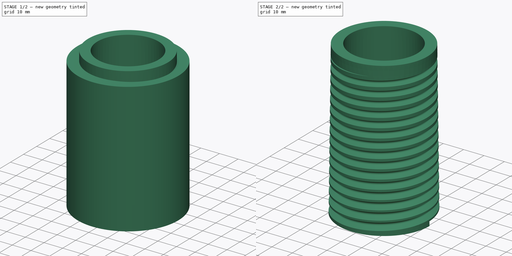
[diagram: build sequence overview — one tinted view per stage of 2, left to right]
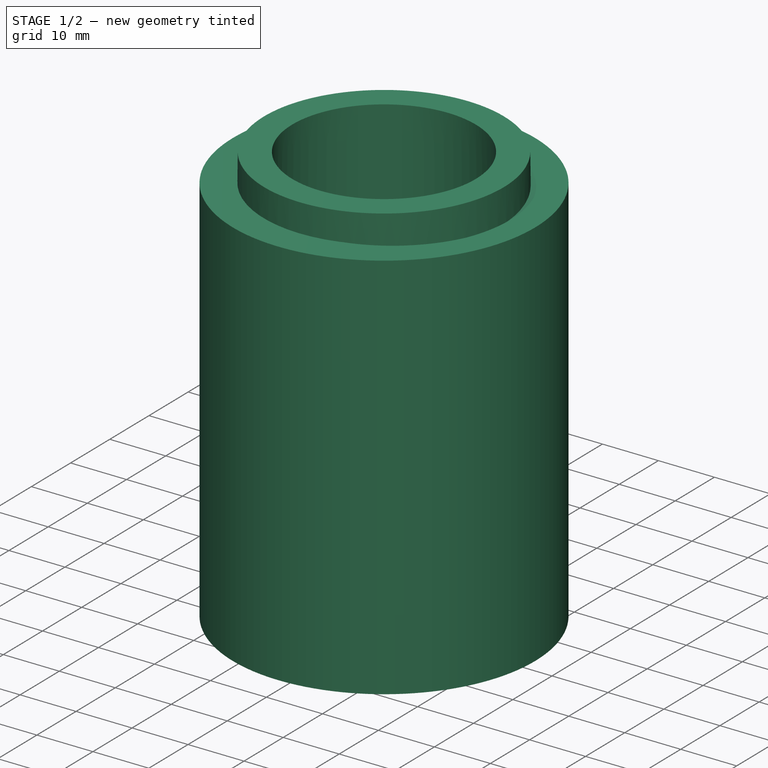
[diagram: stage 1 of 2 — iso view after this stage's code; geometry added in this stage tinted green]
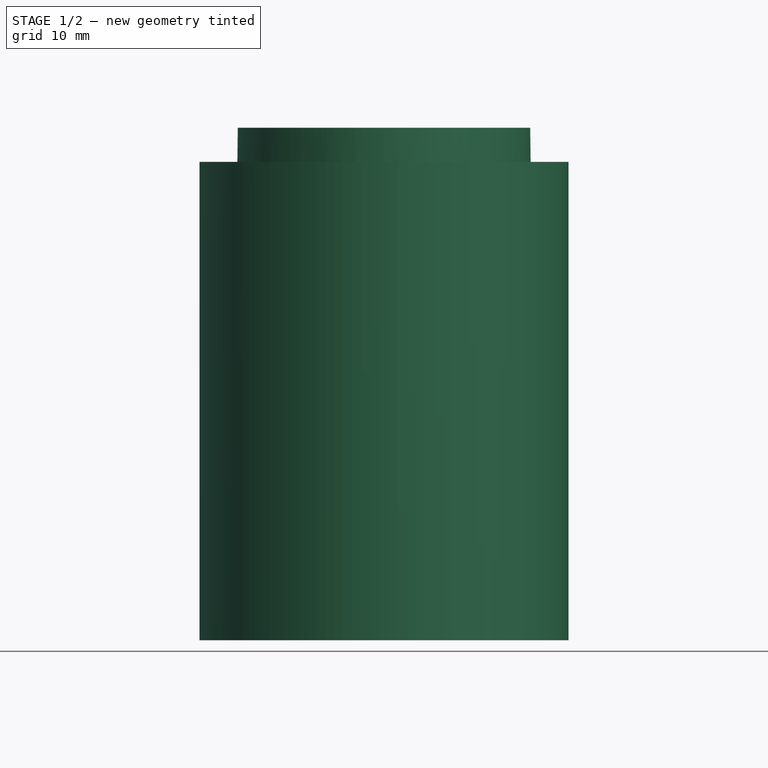
[diagram: stage 1 of 2 — front view after this stage's code; geometry added in this stage tinted green]
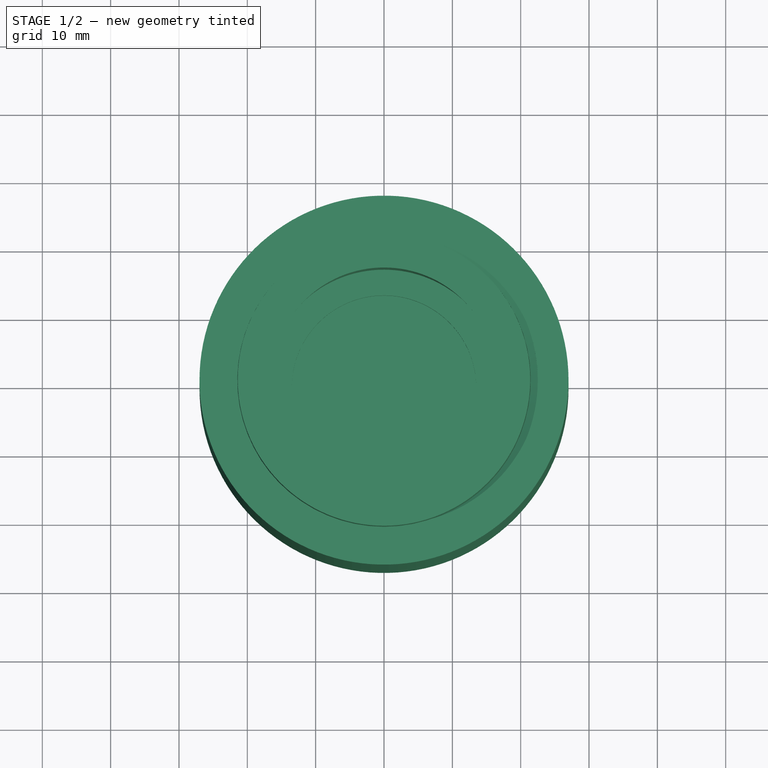
[diagram: stage 1 of 2 — top view after this stage's code; geometry added in this stage tinted green]
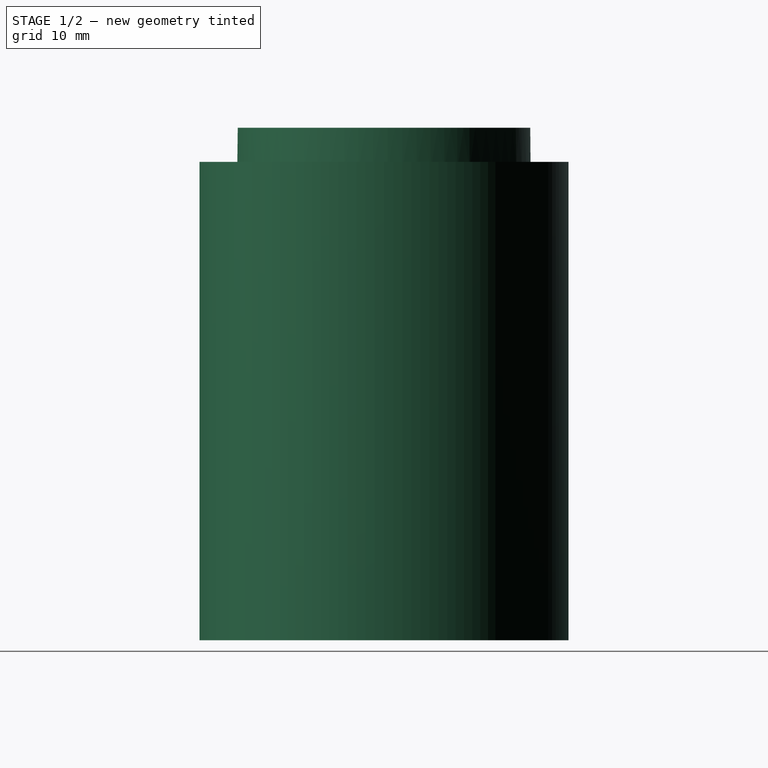
[diagram: stage 1 of 2 — right view after this stage's code; geometry added in this stage tinted green]
FCSTD DOCUMENT  (FreeCAD 0.21R33771 (Git))
Label: Крышка
License: All rights reserved
LicenseURL: https://en.wikipedia.org/wiki/All_rights_reserved
objects: Sketcher::SketchObject×1, PartDesign::Revolution×1, PartDesign::Body×1, Part::FeaturePython×1, Part::Cut×1
note: 6 computed .brp shape members not serialized (recipe doc carries the construction recipe); baked Part::Feature solids carry a one-line shape summary decoded from their .brp

FEATURE [Sketcher::SketchObject] Sketch
  FullyConstrained = true
  MapMode = 5
  Placement = pos=(0,0,0) rot=(0.57735,0.57735,0.57735;2.0944rad)
  Support = -> [YZ_Plane]
  sketch-geometry (14):
    g0: LineSegment StartX=-21.4 StartY=75 StartZ=0 EndX=-22.3 EndY=0 EndZ=0
    g1: LineSegment StartX=-22.3 StartY=0 StartZ=0 EndX=0 EndY=0 EndZ=0
    g2: LineSegment StartX=0 StartY=0 StartZ=0 EndX=0 EndY=5 EndZ=0
    g3: LineSegment StartX=0 StartY=5 StartZ=0 EndX=-13.5 EndY=5 EndZ=0
    g4: LineSegment StartX=-13.5 StartY=5 StartZ=0 EndX=-13.5 EndY=7 EndZ=0
    g5: LineSegment StartX=-13.5 StartY=7 StartZ=0 EndX=-16.5 EndY=7 EndZ=0
    g6: LineSegment StartX=-16.5 StartY=7 StartZ=0 EndX=-16.5 EndY=5 EndZ=0
    g7: LineSegment StartX=-16.5 StartY=5 StartZ=0 EndX=-17.3 EndY=5 EndZ=0
    g8: LineSegment StartX=-17.3 StartY=5 StartZ=0 EndX=-16.4 EndY=75 EndZ=0
    g9: LineSegment StartX=-16.4 StartY=75 StartZ=0 EndX=-21.4 EndY=75 EndZ=0
    g10: LineSegment StartX=0 StartY=5 StartZ=0 EndX=0 EndY=75 EndZ=0
    g11: LineSegment StartX=0 StartY=75 StartZ=0 EndX=-16.4 EndY=75 EndZ=0
    g12: LineSegment StartX=-16.4 StartY=75 StartZ=0 EndX=-17.3 EndY=5 EndZ=0
    g13: LineSegment StartX=-17.3 StartY=5 StartZ=0 EndX=0 EndY=5 EndZ=0
  constraints (39):
    c: Coincident(g0,g1)
    c: Horizontal(g1)
    c: PointOnObject(g1,g-2)
    c: Coincident(g1,g2)
    c: PointOnObject(g2,g-2)
    c: Coincident(g2,g3)
    c: Horizontal(g3)
    c: Coincident(g3,g4)
    c: Coincident(g4,g5)
    c: Coincident(g5,g6)
    c: Vertical(g6)
    c: Coincident(g6,g7)
    c: Coincident(g7,g8)
    c: Coincident(g8,g9)
    c: Coincident(g9,g0)
    c: Horizontal(g7)
    c: Horizontal(g5)
    c: Horizontal(g9)
    c: DistanceX(g0,g7) = 5
    c: DistanceX(g9,g9) = 5
    c: DistanceX(g5,g5) = 3
    c: Vertical(g4)
    c: Horizontal(g6,g3)
    c: DistanceY(g2,g2) = 5
    c: Coincident(g2,g10)
    c: PointOnObject(g10,g-2)
    c: Coincident(g10,g11)
    c: Coincident(g11,g12)
    c: Coincident(g12,g7)
    c: Coincident(g12,g13)
    c: Coincident(g13,g10)
    c: Horizontal(g11)
    c: DistanceY(g10,g10) = 70
    c: DistanceX(g11,g11) = 16.4
    c: DistanceX(g13,g13) = 17.3
    c: Coincident(g11,g8)
    c: PointOnObject(g0,g-1)
    c: DistanceY(g6,g6) = 2
    c: DistanceX(g7,g7) = 0.8
FEATURE [PartDesign::Revolution] Revolution
  Angle = 360
  Axis = (-2e-16,3e-16,1)
  Base = (0,0,0)
  Placement = pos=(0,0,0) rot=(1,1,1;2.0944rad)
  Profile = -> Sketch
  ReferenceAxis = -> Sketch [V_Axis]
FEATURE [PartDesign::Body] Body  label="Тело"
  Group = -> [Sketch,Revolution]
  Origin = -> Origin
  Tip = -> Revolution
FEATURE [Part::FeaturePython] ScrewDie  label="(M45)x70-Плашка"  # Fasteners workbench fastener (typed FeaturePython)
  Placement = pos=(0,0,70) rot=(0,0,1;0rad)
  diameter = 23
  diameterCustom = 6
  invert = false
  leftHanded = false
  length = 70
  matchOuter = false
  offset = 0
  pitchCustom = 1
  thread = true
  type = 0
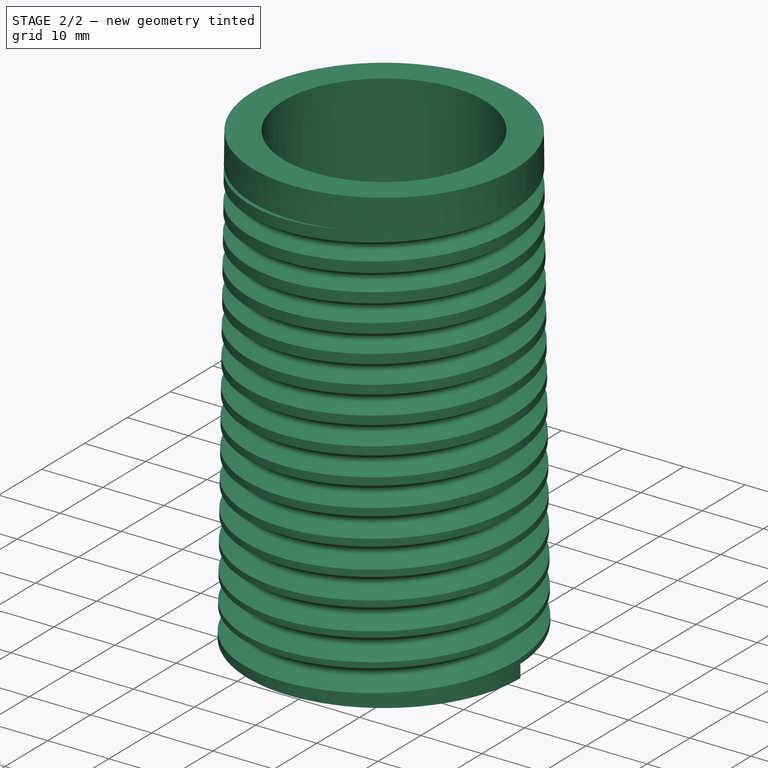
[diagram: stage 2 of 2 — iso view after this stage's code; geometry added in this stage tinted green]
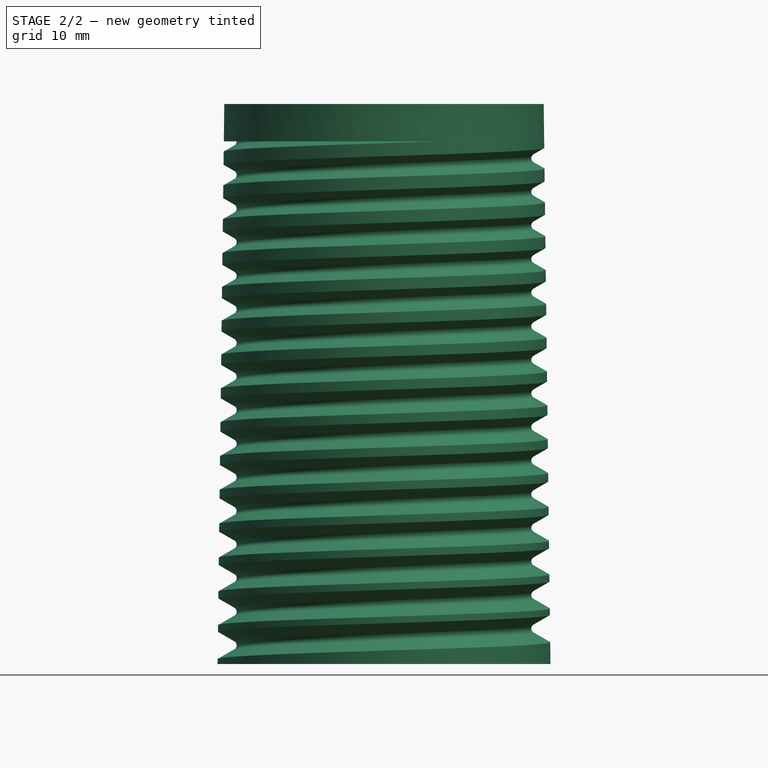
[diagram: stage 2 of 2 — front view after this stage's code; geometry added in this stage tinted green]
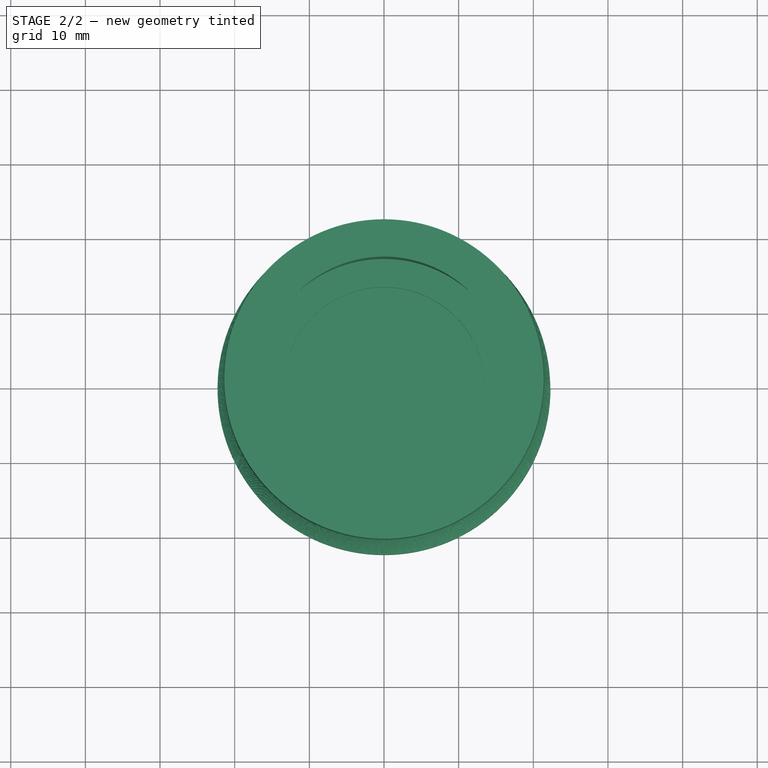
[diagram: stage 2 of 2 — top view after this stage's code; geometry added in this stage tinted green]
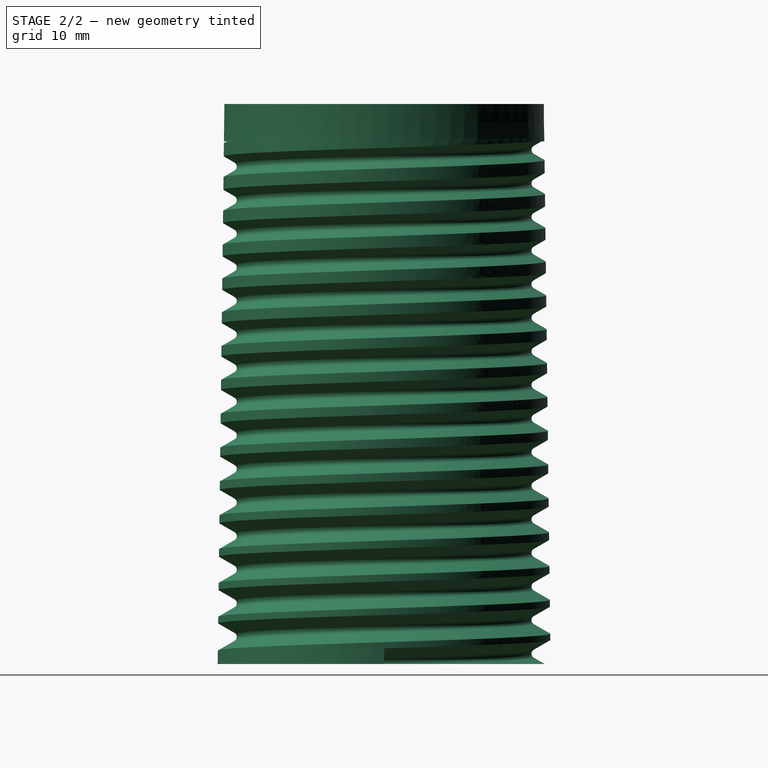
[diagram: stage 2 of 2 — right view after this stage's code; geometry added in this stage tinted green]
FEATURE [Part::Cut] Cut
  Base = -> Body
  Tool = -> ScrewDie
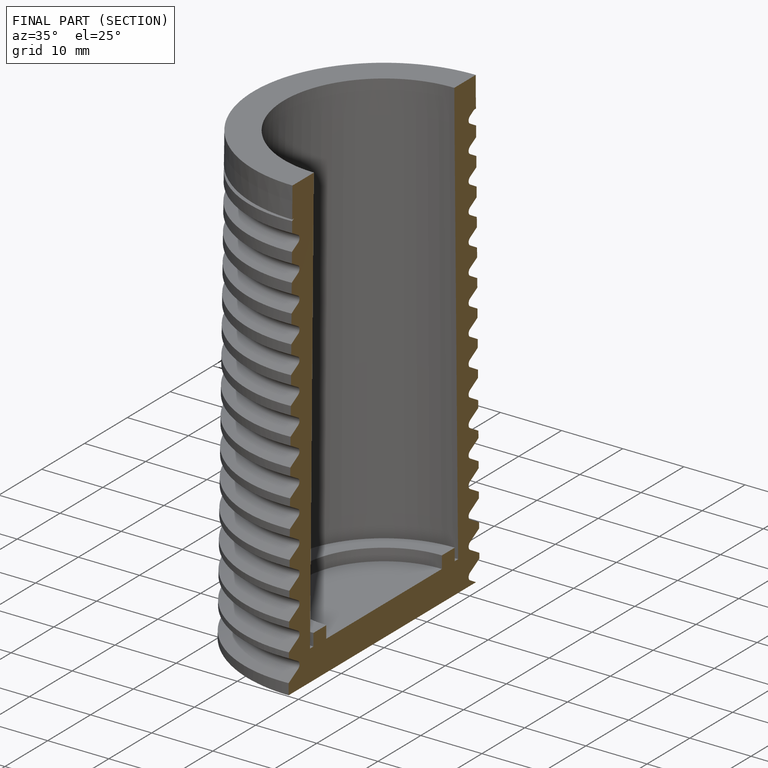
[diagram: finished part — half-section view (interior)]
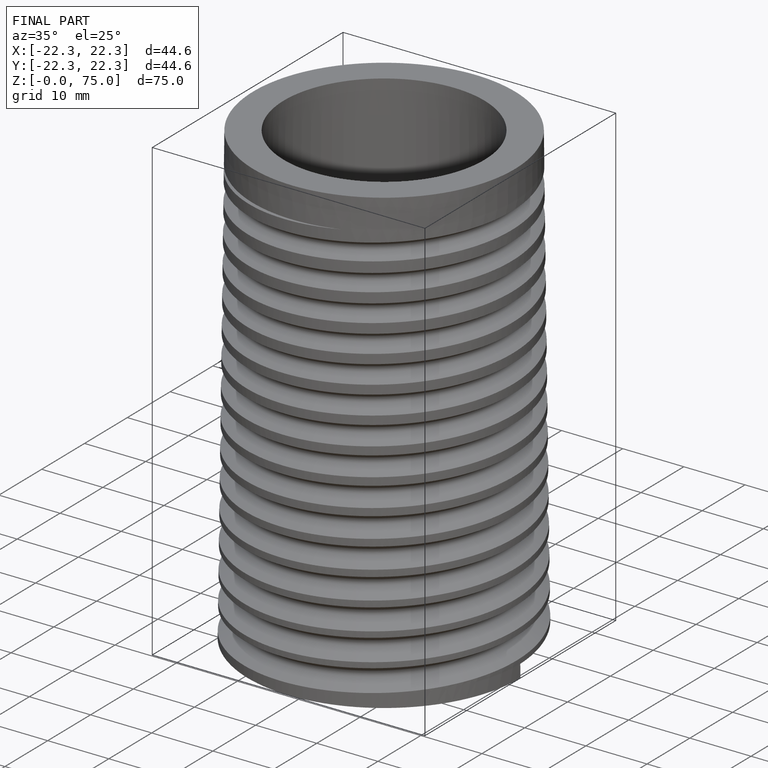
[diagram: finished part — iso view with bounding-box wireframe]
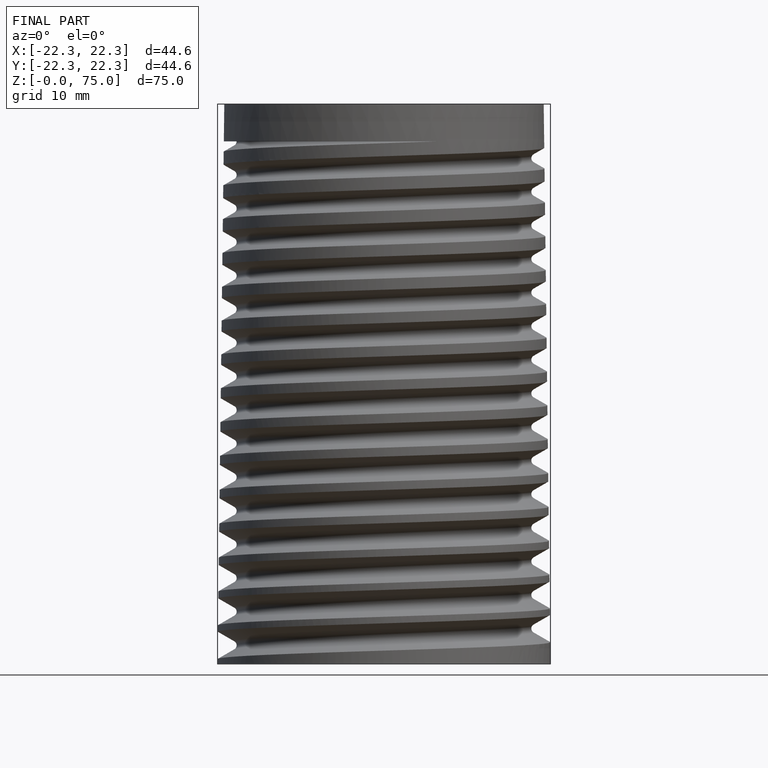
[diagram: finished part — front view with bounding-box wireframe]
